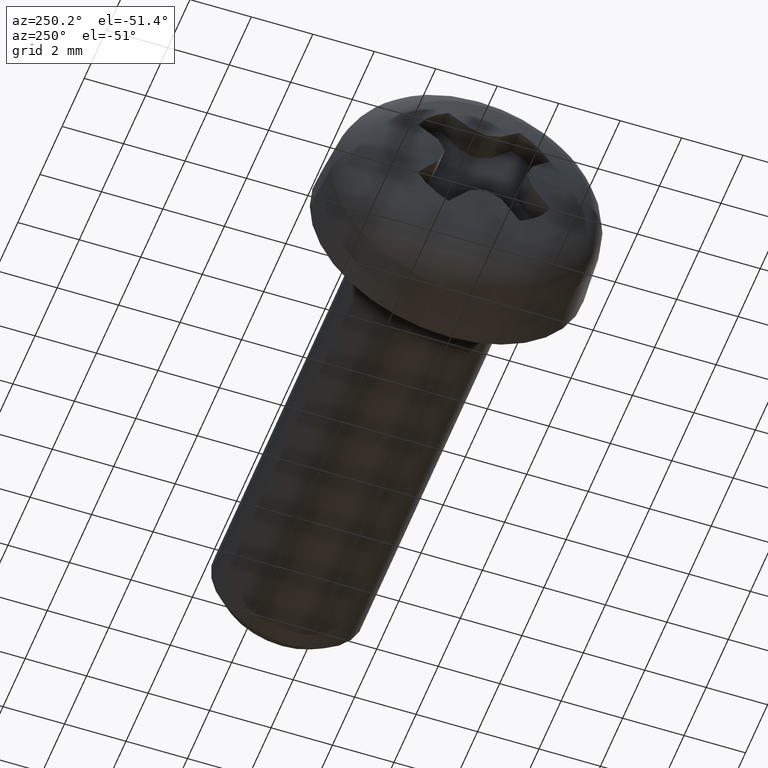
[diagram: clean part render]
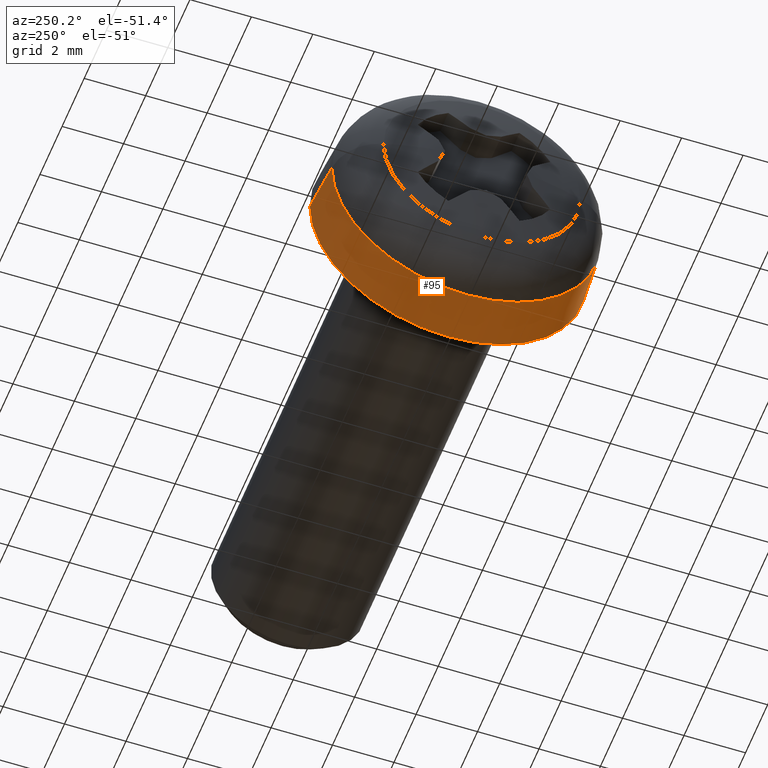
[diagram: same view with one face highlighted and labeled with its STEP entity id]
A machine part, auxiliary view. The second image highlights one B-rep face of the part: STEP entity #95.
In plain terms, the highlighted conical surface has half-angle 4.398 deg.
Its self-contained STEP definition (entity closure, byte-faithful):
#10 = CIRCLE ( 'NONE', #669, 4.373513440437846200 ) ;
#13 = CIRCLE ( 'NONE', #369, 4.499999999994828100 ) ;
#24 = CARTESIAN_POINT ( 'NONE',  ( 1.115179377421018900E-015, 2.763611208503467700E-031, 0.0000000000000000000 ) ) ;
#31 = CARTESIAN_POINT ( 'NONE',  ( -1.644733406041990700, 4.373513440437846200, 0.0000000000000000000 ) ) ;
#46 = CARTESIAN_POINT ( 'NONE',  ( 2.230358754842037700E-015, -4.499999999994828100, 5.510910596156756000E-016 ) ) ;
#95 = ADVANCED_FACE ( 'NONE', ( #614 ), #821, .T. ) ;
#149 = CARTESIAN_POINT ( 'NONE',  ( 2.230358754842037700E-015, -4.499999999994828100, 5.510910596156756000E-016 ) ) ;
#235 = EDGE_CURVE ( 'NONE', #751, #570, #13, .T. ) ;
#339 = EDGE_CURVE ( 'NONE', #465, #570, #820, .T. ) ;
#369 = AXIS2_PLACEMENT_3D ( 'NONE', #24, #916, #1085 ) ;
#370 = ORIENTED_EDGE ( 'NONE', *, *, #235, .F. ) ;
#384 = DIRECTION ( 'NONE',  ( 1.000000000000000000, 2.478176394271778600E-016, -0.0000000000000000000 ) ) ;
#465 = VERTEX_POINT ( 'NONE', #31 ) ;
#515 = CARTESIAN_POINT ( 'NONE',  ( -1.644733406041989600, -4.075939501723478800E-016, 0.0000000000000000000 ) ) ;
#557 = VECTOR ( 'NONE', #1272, 1000.000000000000100 ) ;
#570 = VERTEX_POINT ( 'NONE', #634 ) ;
#610 = DIRECTION ( 'NONE',  ( -2.479018727737033300E-016, 1.000000000000000000, 0.0000000000000000000 ) ) ;
#614 = FACE_OUTER_BOUND ( 'NONE', #1047, .T. ) ;
#619 = DIRECTION ( 'NONE',  ( 0.9970559406991360600, -0.07667757896908947200, 9.390295165086414000E-018 ) ) ;
#634 = CARTESIAN_POINT ( 'NONE',  ( 0.0000000000000000000, 4.499999999994828100, 0.0000000000000000000 ) ) ;
#644 = EDGE_CURVE ( 'NONE', #944, #751, #1251, .T. ) ;
#669 = AXIS2_PLACEMENT_3D ( 'NONE', #515, #1210, #610 ) ;
#746 = DIRECTION ( 'NONE',  ( -2.478176394271779100E-016, 1.000000000000000000, 0.0000000000000000000 ) ) ;
#751 = VERTEX_POINT ( 'NONE', #149 ) ;
#778 = CARTESIAN_POINT ( 'NONE',  ( -1.644733406041988500, -4.373513440437846200, 5.433459916008446800E-016 ) ) ;
#820 = LINE ( 'NONE', #1194, #557 ) ;
#821 = CONICAL_SURFACE ( 'NONE', #1069, 4.499999999994828100, 0.07675291547445781100 ) ;
#856 = ORIENTED_EDGE ( 'NONE', *, *, #1057, .T. ) ;
#916 = DIRECTION ( 'NONE',  ( 1.000000000000000000, 2.478176394271778600E-016, -0.0000000000000000000 ) ) ;
#944 = VERTEX_POINT ( 'NONE', #778 ) ;
#981 = ORIENTED_EDGE ( 'NONE', *, *, #339, .T. ) ;
#1047 = EDGE_LOOP ( 'NONE', ( #1148, #856, #981, #370 ) ) ;
#1057 = EDGE_CURVE ( 'NONE', #944, #465, #10, .T. ) ;
#1066 = CARTESIAN_POINT ( 'NONE',  ( 1.115179377421018900E-015, 2.763611208503467700E-031, 0.0000000000000000000 ) ) ;
#1069 = AXIS2_PLACEMENT_3D ( 'NONE', #1066, #384, #746 ) ;
#1085 = DIRECTION ( 'NONE',  ( -2.478176394271779100E-016, 1.000000000000000000, 0.0000000000000000000 ) ) ;
#1148 = ORIENTED_EDGE ( 'NONE', *, *, #644, .F. ) ;
#1194 = CARTESIAN_POINT ( 'NONE',  ( 0.0000000000000000000, 4.499999999994828100, 0.0000000000000000000 ) ) ;
#1210 = DIRECTION ( 'NONE',  ( 1.000000000000000000, 2.478176394271778600E-016, -0.0000000000000000000 ) ) ;
#1214 = VECTOR ( 'NONE', #619, 1000.000000000000000 ) ;
#1251 = LINE ( 'NONE', #46, #1214 ) ;
#1272 = DIRECTION ( 'NONE',  ( 0.9970559406991359500, 0.07667757896908995700, 0.0000000000000000000 ) ) ;